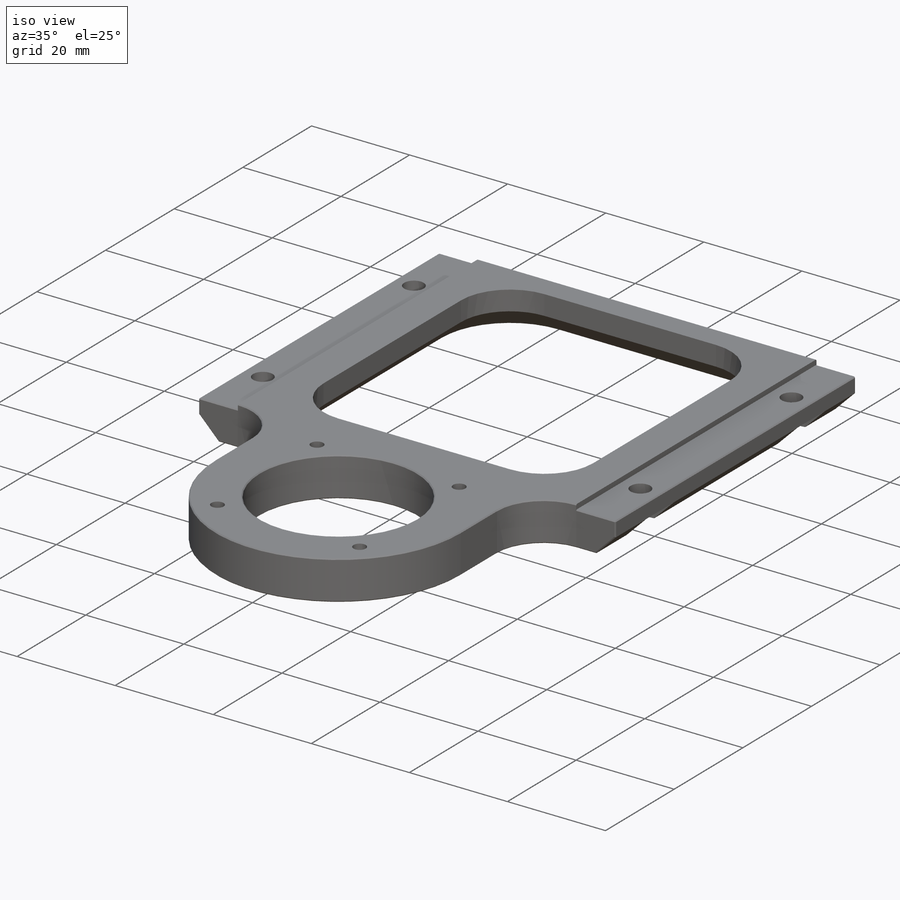
[diagram: iso view]
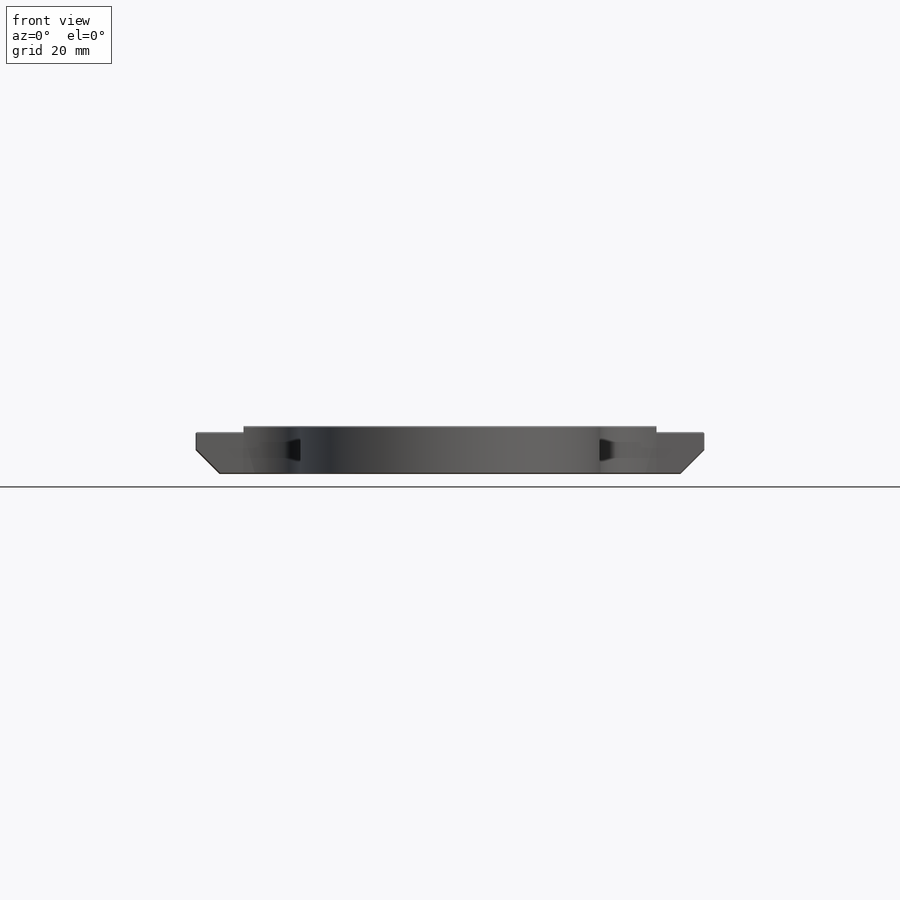
[diagram: front view]
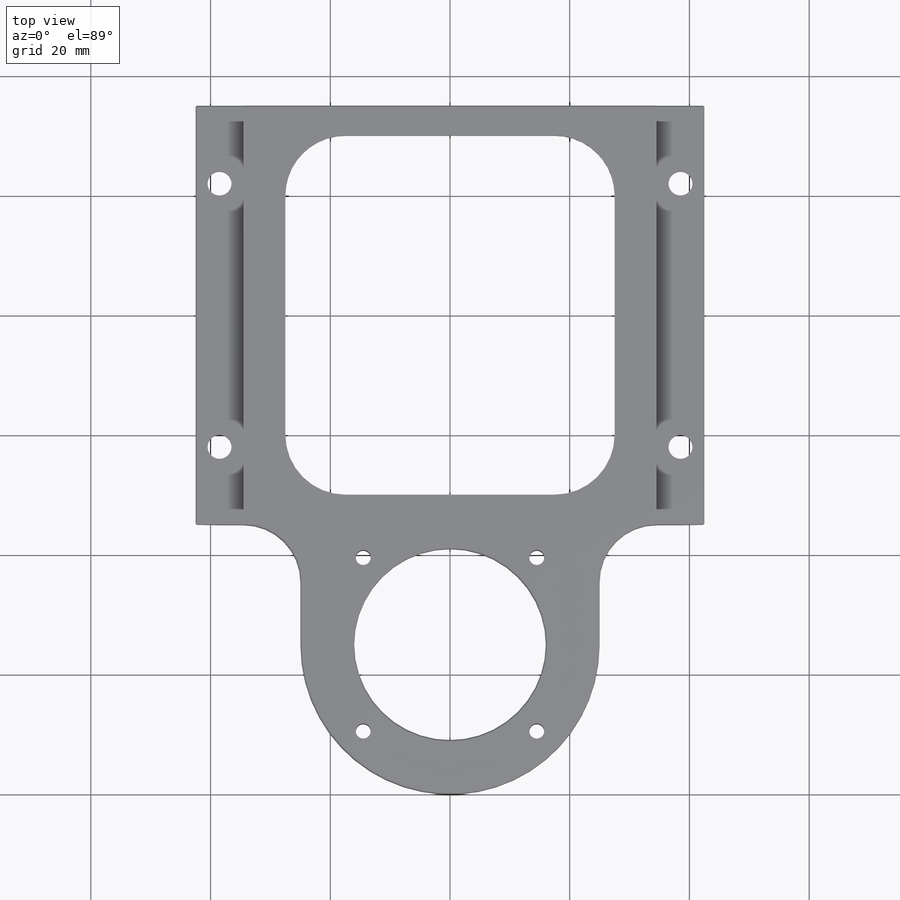
[diagram: top view]
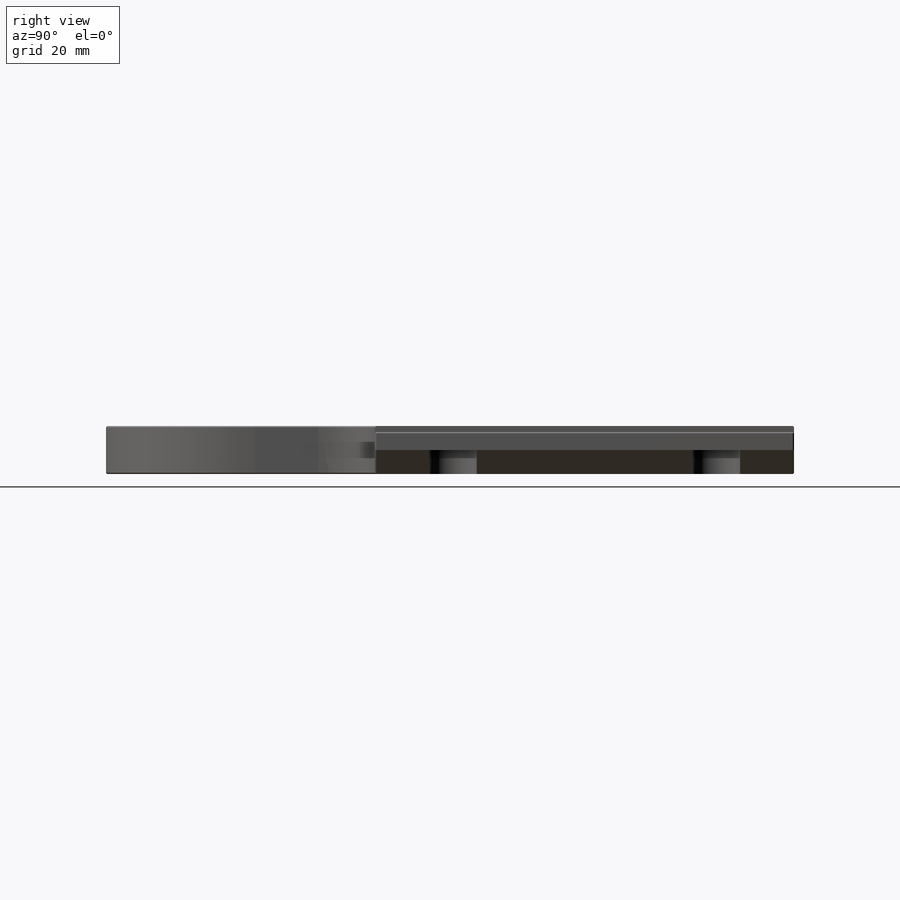
[diagram: right view]
SOLIDWORKS PART (.sldprt)
format: sldprt  version: not decoded by parser v0  size: 375,296 bytes
history: native  units: mm
features: plane x3, sketch x3, chamfer x2, cut_extrude x2, material x1, extrude x1 (+9 scaffold rows collapsed)
feature tree (21):
  scaffold x9  (default folders/planes/origin — collapsed)
  material  "Material <nicht festgelegt>"
  plane  "Ebene vorne"
  plane  "Ebene oben"
  plane  "Ebene rechts"
  sketch  "Skizze1"  dims[c1.D3=32.0mm c1.D4=50.0mm c1.D5=41.0mm c1.D6=2.5mm c1.D11=9.5mm c1.D12=4.0mm c1.D17=10.0mm c1.D1=85.0mm c1.D2=70.0mm c2.D5=~59.339587mm c2.D8=15.0mm c2.D9=5.0mm c2.D10=20.0mm c2.D13=4.0mm c2.D14=4.0mm c2.D15=13.0mm c2.D16=13.0mm c2.D7=4.0]
  extrude  "Aufsatz-Linear austragen1"  Depth=8mm
  chamfer  "Fase1"  Distance=4mm Angle=45deg
  sketch  "Skizze2"  dims[D1=7.5mm]
  cut_extrude  "Schnitt-Linear austragen1"  Depth=1mm
  sketch  "Skizze3"  dims[D1=2.0mm D2=2.0mm D3=2.0mm D4=2.0mm]
  cut_extrude  "Schnitt-Linear austragen2"  Depth=4mm
  chamfer  "Fase3"  Distance=0.2mm Angle=45deg
decode coverage: 8 of 8 modeling features carry decoded parameters
note: ~ marks probable driven/reference dimensions
note: suppression state not decoded; provenance and decode notes live in map.json
